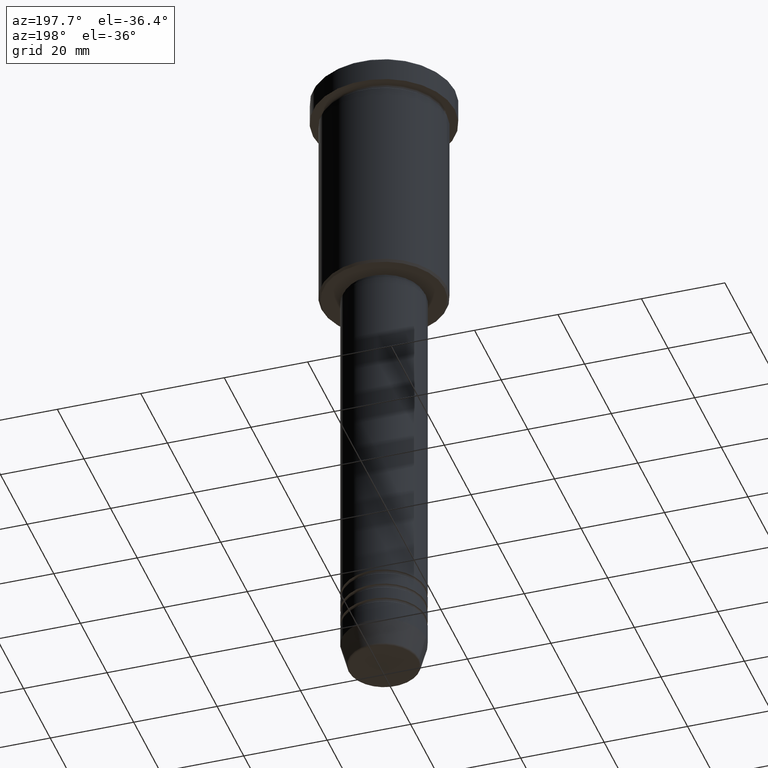
[diagram: clean part render]
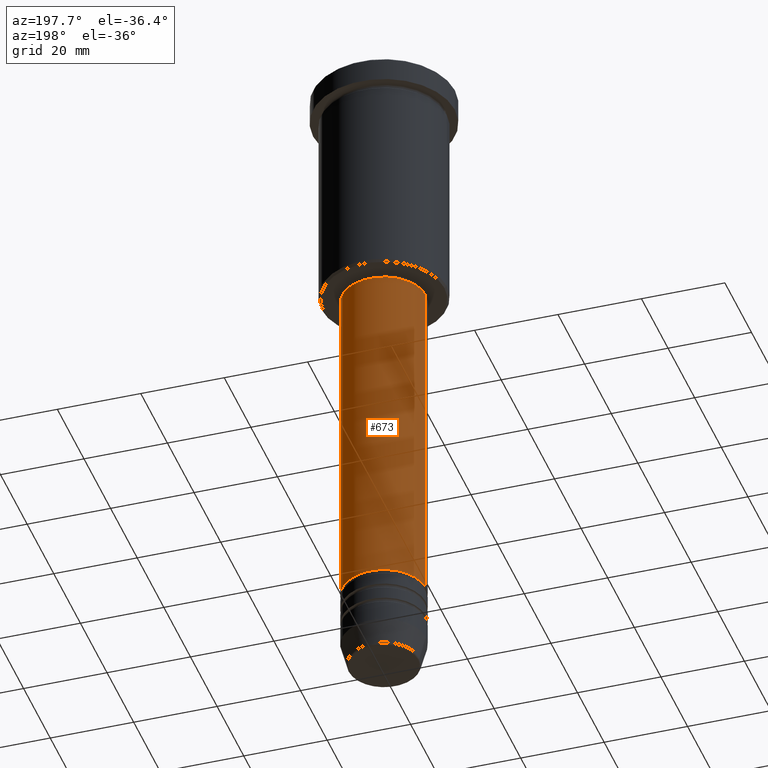
[diagram: same view with one face highlighted and labeled with its STEP entity id]
A machine part, auxiliary view. The second image highlights one B-rep face of the part: STEP entity #673.
In plain terms, the highlighted cylindrical surface (partial cylindrical patch) has radius 10 mm, axis along (-0, -0, 1).
Its self-contained STEP definition (entity closure, byte-faithful):
#20 = CARTESIAN_POINT ( 'NONE',  ( 10.00000000000000000, 0.000000000000000000, 0.000000000000000000 ) ) ;
#71 = EDGE_LOOP ( 'NONE', ( #232, #1061, #563, #621 ) ) ;
#75 = CARTESIAN_POINT ( 'NONE',  ( 9.999999999999998224, 0.000000000000000000, -57.00000000000001421 ) ) ;
#85 = AXIS2_PLACEMENT_3D ( 'NONE', #1006, #541, #200 ) ;
#90 = DIRECTION ( 'NONE',  ( -0.000000000000000000, -0.000000000000000000, 1.000000000000000000 ) ) ;
#188 = DIRECTION ( 'NONE',  ( 1.000000000000000000, 0.000000000000000000, 0.000000000000000000 ) ) ;
#200 = DIRECTION ( 'NONE',  ( 1.000000000000000000, 0.000000000000000000, 0.000000000000000000 ) ) ;
#232 = ORIENTED_EDGE ( 'NONE', *, *, #892, .T. ) ;
#277 = EDGE_CURVE ( 'NONE', #432, #656, #373, .T. ) ;
#355 = CARTESIAN_POINT ( 'NONE',  ( 0.000000000000000000, 0.000000000000000000, -57.00000000000001421 ) ) ;
#368 = LINE ( 'NONE', #1113, #1175 ) ;
#372 = CYLINDRICAL_SURFACE ( 'NONE', #672, 10.00000000000000000 ) ;
#373 = LINE ( 'NONE', #20, #696 ) ;
#382 = CIRCLE ( 'NONE', #85, 10.00000000000000178 ) ;
#432 = VERTEX_POINT ( 'NONE', #778 ) ;
#494 = CIRCLE ( 'NONE', #862, 9.999999999999998224 ) ;
#521 = CARTESIAN_POINT ( 'NONE',  ( -9.999999999999998224, 1.224646799147353256E-15, -57.00000000000001421 ) ) ;
#541 = DIRECTION ( 'NONE',  ( -0.000000000000000000, -0.000000000000000000, 1.000000000000000000 ) ) ;
#557 = EDGE_CURVE ( 'NONE', #656, #1060, #494, .T. ) ;
#563 = ORIENTED_EDGE ( 'NONE', *, *, #557, .F. ) ;
#621 = ORIENTED_EDGE ( 'NONE', *, *, #277, .F. ) ;
#642 = FACE_OUTER_BOUND ( 'NONE', #71, .T. ) ;
#656 = VERTEX_POINT ( 'NONE', #75 ) ;
#672 = AXIS2_PLACEMENT_3D ( 'NONE', #1104, #1017, #188 ) ;
#673 = ADVANCED_FACE ( 'NONE', ( #642 ), #372, .T. ) ;
#696 = VECTOR ( 'NONE', #1114, 1000.000000000000000 ) ;
#778 = CARTESIAN_POINT ( 'NONE',  ( 10.00000000000000178, 0.000000000000000000, -139.9999999999999716 ) ) ;
#862 = AXIS2_PLACEMENT_3D ( 'NONE', #355, #90, #1092 ) ;
#880 = EDGE_CURVE ( 'NONE', #1063, #1060, #368, .T. ) ;
#892 = EDGE_CURVE ( 'NONE', #432, #1063, #382, .T. ) ;
#1006 = CARTESIAN_POINT ( 'NONE',  ( 0.000000000000000000, 0.000000000000000000, -139.9999999999999716 ) ) ;
#1017 = DIRECTION ( 'NONE',  ( -0.000000000000000000, -0.000000000000000000, 1.000000000000000000 ) ) ;
#1023 = DIRECTION ( 'NONE',  ( -0.000000000000000000, -0.000000000000000000, 1.000000000000000000 ) ) ;
#1060 = VERTEX_POINT ( 'NONE', #521 ) ;
#1061 = ORIENTED_EDGE ( 'NONE', *, *, #880, .T. ) ;
#1063 = VERTEX_POINT ( 'NONE', #1164 ) ;
#1092 = DIRECTION ( 'NONE',  ( 1.000000000000000000, 0.000000000000000000, 0.000000000000000000 ) ) ;
#1104 = CARTESIAN_POINT ( 'NONE',  ( 0.000000000000000000, 0.000000000000000000, 0.000000000000000000 ) ) ;
#1113 = CARTESIAN_POINT ( 'NONE',  ( -10.00000000000000000, 1.224646799147353256E-15, 0.000000000000000000 ) ) ;
#1114 = DIRECTION ( 'NONE',  ( -0.000000000000000000, -0.000000000000000000, 1.000000000000000000 ) ) ;
#1164 = CARTESIAN_POINT ( 'NONE',  ( -10.00000000000000178, 1.224646799147353454E-15, -139.9999999999999716 ) ) ;
#1175 = VECTOR ( 'NONE', #1023, 1000.000000000000000 ) ;